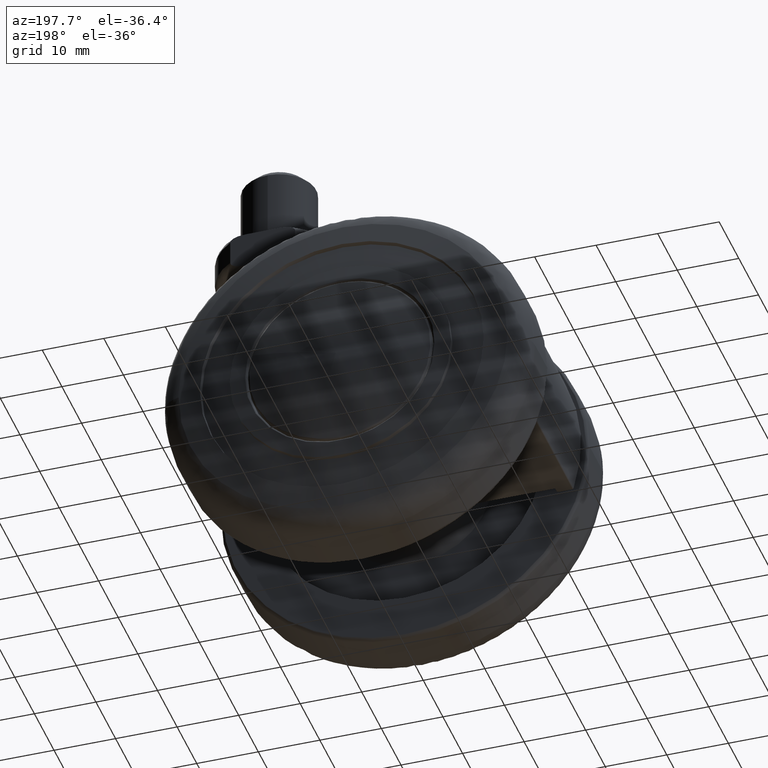
[diagram: clean part render]
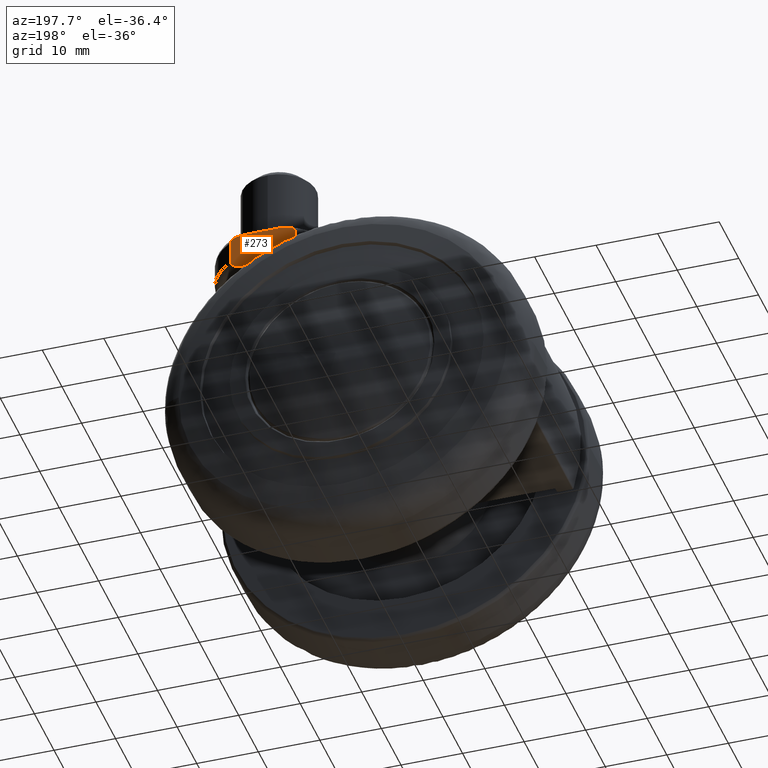
[diagram: same view with one face highlighted and labeled with its STEP entity id]
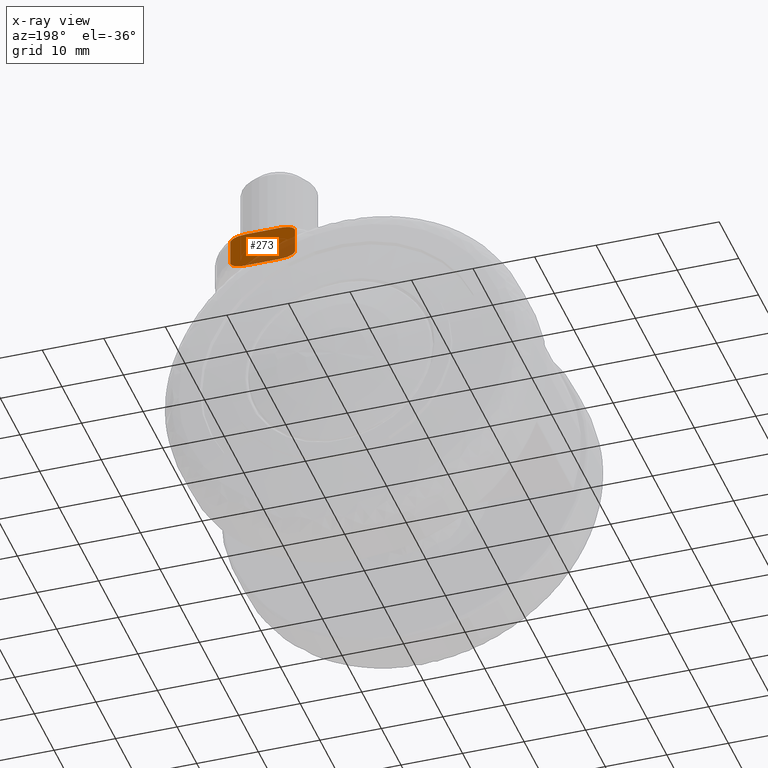
[diagram: x-ray of the same camera — body ghosted, the highlighted face saturated]
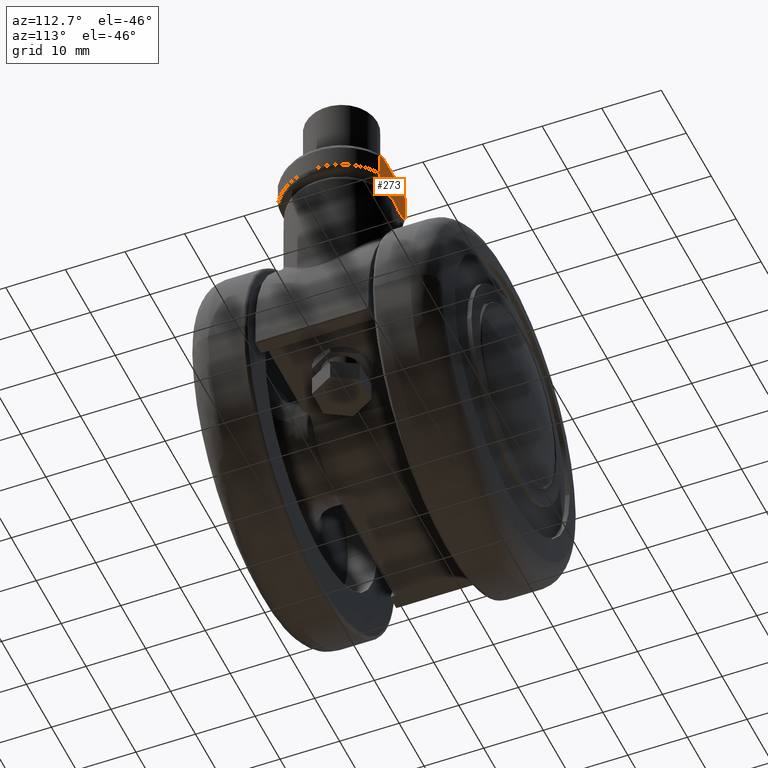
[diagram: same view with one face highlighted and labeled with its STEP entity id]
A machine part, auxiliary view. The second image highlights one B-rep face of the part: STEP entity #273.
The next image is the same camera in x-ray: the body ghosted, the highlighted face saturated — about 28% of this face is hidden behind the body in this view.
A second angle (auxiliary view) of the same face is appended — the face is thin or edge-on in the first view.
In plain terms, the highlighted planar face has unit normal (-0, -1, 0).
Its self-contained STEP definition (entity closure, byte-faithful):
#273=ADVANCED_FACE('',(#1474),#1473,.F.);
#1473=PLANE('',#4197);
#1474=FACE_OUTER_BOUND('',#4198,.T.);
#4194=CARTESIAN_POINT('',(6.00000000000E-01,-6.32139225171E+00,8.50000000000E+00));
#4195=DIRECTION('',(0.00000000000E+00,0.00000000000E+00,-1.00000000000E+00));
#4196=DIRECTION('',(-1.00000000000E+00,0.00000000000E+00,0.00000000000E+00));
#4197=AXIS2_PLACEMENT_3D('',#4194,#4195,#4196);
#4198=EDGE_LOOP('',(#5065,#5066,#5067,#5068,#5069,#5070,#5071,#5072));
#5065=ORIENTED_EDGE('',*,*,#5514,.T.);
#5066=ORIENTED_EDGE('',*,*,#5501,.T.);
#5067=ORIENTED_EDGE('',*,*,#5494,.T.);
#5068=ORIENTED_EDGE('',*,*,#5515,.T.);
#5069=ORIENTED_EDGE('',*,*,#5516,.F.);
#5070=ORIENTED_EDGE('',*,*,#5517,.T.);
#5071=ORIENTED_EDGE('',*,*,#5505,.F.);
#5072=ORIENTED_EDGE('',*,*,#5518,.T.);
#5494=EDGE_CURVE('',#7398,#7399,#7400,.T.);
#5501=EDGE_CURVE('',#7447,#7398,#7448,.T.);
#5505=EDGE_CURVE('',#7468,#7475,#7476,.T.);
#5514=EDGE_CURVE('',#7535,#7447,#7536,.T.);
#5515=EDGE_CURVE('',#7399,#7542,#7543,.T.);
#5516=EDGE_CURVE('',#7549,#7542,#7550,.T.);
#5517=EDGE_CURVE('',#7549,#7475,#7556,.T.);
#5518=EDGE_CURVE('',#7468,#7535,#7562,.T.);
#7398=VERTEX_POINT('',#9472);
#7399=VERTEX_POINT('',#9473);
#7400=LINE('',#9474,#9475);
#7447=VERTEX_POINT('',#9513);
#7448=(BOUNDED_CURVE() B_SPLINE_CURVE(3,(#9514,#9515,#9516,#9517,#9518,#9519,#9520,#9521,#9522,#9523,#9524,#9525,#9526,#9527),.UNSPECIFIED.,.F.,.F.) B_SPLINE_CURVE_WITH_KNOTS((4,2,2,2,2,2,4),(0.00000000000E+00,3.88495916529E-04,7.76991833057E-04,1.16548774959E-03,1.55398366611E-03,2.33097549917E-03,3.10796733223E-03),.UNSPECIFIED.) CURVE() GEOMETRIC_REPRESENTATION_ITEM() RATIONAL_B_SPLINE_CURVE((1.00000000000E+00,1.00000000000E+00,1.00000000000E+00,1.00000000000E+00,1.00000000000E+00,1.00000000000E+00,1.00000000000E+00,1.00000000000E+00,1.00000000000E+00,1.00000000000E+00,1.00000000000E+00,1.00000000000E+00,1.00000000000E+00,1.00000000000E+00)) REPRESENTATION_ITEM('') );
#7468=VERTEX_POINT('',#9537);
#7475=VERTEX_POINT('',#9542);
#7476=LINE('',#9543,#9544);
#7535=VERTEX_POINT('',#9609);
#7536=LINE('',#9610,#9611);
#7542=VERTEX_POINT('',#9613);
#7543=(BOUNDED_CURVE() B_SPLINE_CURVE(3,(#9614,#9615,#9616,#9617,#9618,#9619,#9620,#9621,#9622,#9623,#9624,#9625),.UNSPECIFIED.,.F.,.F.) B_SPLINE_CURVE_WITH_KNOTS((4,2,2,2,2,4),(3.04589761903E-18,7.70109547147E-04,1.54021909429E-03,2.31032864144E-03,2.69538341502E-03,3.08043818859E-03),.UNSPECIFIED.) CURVE() GEOMETRIC_REPRESENTATION_ITEM() RATIONAL_B_SPLINE_CURVE((1.00000000000E+00,1.00000000000E+00,1.00000000000E+00,1.00000000000E+00,1.00000000000E+00,1.00000000000E+00,1.00000000000E+00,1.00000000000E+00,1.00000000000E+00,1.00000000000E+00,1.00000000000E+00,1.00000000000E+00)) REPRESENTATION_ITEM('') );
#7549=VERTEX_POINT('',#9626);
#7550=LINE('',#9627,#9628);
#7556=(BOUNDED_CURVE() B_SPLINE_CURVE(3,(#9630,#9631,#9632,#9633,#9634,#9635,#9636,#9637,#9638,#9639,#9640,#9641,#9642,#9643),.UNSPECIFIED.,.F.,.F.) B_SPLINE_CURVE_WITH_KNOTS((4,2,2,2,2,2,4),(0.00000000000E+00,3.88495916529E-04,7.76991833057E-04,1.16548774959E-03,1.55398366611E-03,2.33097549917E-03,3.10796733223E-03),.UNSPECIFIED.) CURVE() GEOMETRIC_REPRESENTATION_ITEM() RATIONAL_B_SPLINE_CURVE((1.00000000000E+00,1.00000000000E+00,1.00000000000E+00,1.00000000000E+00,1.00000000000E+00,1.00000000000E+00,1.00000000000E+00,1.00000000000E+00,1.00000000000E+00,1.00000000000E+00,1.00000000000E+00,1.00000000000E+00,1.00000000000E+00,1.00000000000E+00)) REPRESENTATION_ITEM('') );
#7562=(BOUNDED_CURVE() B_SPLINE_CURVE(3,(#9644,#9645,#9646,#9647,#9648,#9649,#9650,#9651,#9652,#9653,#9654,#9655),.UNSPECIFIED.,.F.,.F.) B_SPLINE_CURVE_WITH_KNOTS((4,2,2,2,2,4),(8.67361737988E-19,7.70109547147E-04,1.54021909429E-03,2.31032864144E-03,2.69538341502E-03,3.08043818859E-03),.UNSPECIFIED.) CURVE() GEOMETRIC_REPRESENTATION_ITEM() RATIONAL_B_SPLINE_CURVE((1.00000000000E+00,1.00000000000E+00,1.00000000000E+00,1.00000000000E+00,1.00000000000E+00,1.00000000000E+00,1.00000000000E+00,1.00000000000E+00,1.00000000000E+00,1.00000000000E+00,1.00000000000E+00,1.00000000000E+00)) REPRESENTATION_ITEM('') );
#9472=CARTESIAN_POINT('',(0.00000000000E+00,-2.63818119165E+00,8.50000000000E+00));
#9473=CARTESIAN_POINT('',(0.00000000000E+00,2.63818119165E+00,8.50000000000E+00));
#9474=CARTESIAN_POINT('',(0.00000000000E+00,-2.63818119165E+00,8.50000000000E+00));
#9475=VECTOR('',#9476,5.27636238331E+00);
#9476=DIRECTION('',(0.00000000000E+00,1.00000000000E+00,6.73326322324E-16));
#9513=CARTESIAN_POINT('',(-1.10000000000E+00,-5.26782687643E+00,8.50000000000E+00));
#9514=CARTESIAN_POINT('',(-1.10000000000E+00,-5.26782687643E+00,8.50000000000E+00));
#9515=CARTESIAN_POINT('',(-9.68499553201E-01,-5.26782687643E+00,8.50000000000E+00));
#9516=CARTESIAN_POINT('',(-8.42398680044E-01,-5.22161234199E+00,8.50000000000E+00));
#9517=CARTESIAN_POINT('',(-6.26244626236E-01,-5.07454047306E+00,8.50000000000E+00));
#9518=CARTESIAN_POINT('',(-5.37845918692E-01,-4.97791877551E+00,8.50000000000E+00));
#9519=CARTESIAN_POINT('',(-3.88525246211E-01,-4.76470148028E+00,8.50000000000E+00));
#9520=CARTESIAN_POINT('',(-3.29242311810E-01,-4.65037410100E+00,8.50000000000E+00));
#9521=CARTESIAN_POINT('',(-2.29321570996E-01,-4.41236036611E+00,8.50000000000E+00));
#9522=CARTESIAN_POINT('',(-1.88995106134E-01,-4.28820403780E+00,8.50000000000E+00));
#9523=CARTESIAN_POINT('',(-9.07994094855E-02,-3.91544957079E+00,8.50000000000E+00));
#9524=CARTESIAN_POINT('',(-5.34717197284E-02,-3.66275141159E+00,8.50000000000E+00));
#9525=CARTESIAN_POINT('',(-7.75969497104E-03,-3.15303954897E+00,8.50000000000E+00));
#9526=CARTESIAN_POINT('',(-2.82697246146E-16,-2.89554108775E+00,8.50000000000E+00));
#9527=CARTESIAN_POINT('',(0.00000000000E+00,-2.63818119165E+00,8.50000000000E+00));
#9537=CARTESIAN_POINT('',(-6.00000000000E+00,-2.63818119165E+00,8.50000000000E+00));
#9542=CARTESIAN_POINT('',(-6.00000000000E+00,2.63818119165E+00,8.50000000000E+00));
#9543=CARTESIAN_POINT('',(-6.00000000000E+00,-2.63818119165E+00,8.50000000000E+00));
#9544=VECTOR('',#9545,5.27636238331E+00);
#9545=DIRECTION('',(0.00000000000E+00,1.00000000000E+00,0.00000000000E+00));
#9609=CARTESIAN_POINT('',(-4.90000000000E+00,-5.26782687643E+00,8.50000000000E+00));
#9610=CARTESIAN_POINT('',(-4.90000000000E+00,-5.26782687643E+00,8.50000000000E+00));
#9611=VECTOR('',#9612,3.80000000000E+00);
#9612=DIRECTION('',(1.00000000000E+00,0.00000000000E+00,0.00000000000E+00));
#9613=CARTESIAN_POINT('',(-1.10000000000E+00,5.26782687643E+00,8.50000000000E+00));
#9614=CARTESIAN_POINT('',(0.00000000000E+00,2.63818119165E+00,8.50000000000E+00));
#9615=CARTESIAN_POINT('',(-1.90582413132E-18,2.89575272413E+00,8.50000000000E+00));
#9616=CARTESIAN_POINT('',(-7.70887567934E-03,3.15268964969E+00,8.50000000000E+00));
#9617=CARTESIAN_POINT('',(-5.36080344117E-02,3.66405422282E+00,8.50000000000E+00));
#9618=CARTESIAN_POINT('',(-9.16527602916E-02,3.92035952819E+00,8.50000000000E+00));
#9619=CARTESIAN_POINT('',(-2.23730215671E-01,4.41835256918E+00,8.50000000000E+00));
#9620=CARTESIAN_POINT('',(-3.17408247828E-01,4.66373596702E+00,8.50000000000E+00));
#9621=CARTESIAN_POINT('',(-5.37698987677E-01,4.97741395515E+00,8.50000000000E+00));
#9622=CARTESIAN_POINT('',(-6.27225778854E-01,5.07528084069E+00,8.50000000000E+00));
#9623=CARTESIAN_POINT('',(-8.42046734144E-01,5.22129987499E+00,8.50000000000E+00));
#9624=CARTESIAN_POINT('',(-9.68532524119E-01,5.26782687643E+00,8.50000000000E+00));
#9625=CARTESIAN_POINT('',(-1.10000000000E+00,5.26782687643E+00,8.50000000000E+00));
#9626=CARTESIAN_POINT('',(-4.90000000000E+00,5.26782687643E+00,8.50000000000E+00));
#9627=CARTESIAN_POINT('',(-4.90000000000E+00,5.26782687643E+00,8.50000000000E+00));
#9628=VECTOR('',#9629,3.80000000000E+00);
#9629=DIRECTION('',(1.00000000000E+00,0.00000000000E+00,0.00000000000E+00));
#9630=CARTESIAN_POINT('',(-4.90000000000E+00,5.26782687643E+00,8.50000000000E+00));
#9631=CARTESIAN_POINT('',(-5.03150044680E+00,5.26782687643E+00,8.50000000000E+00));
#9632=CARTESIAN_POINT('',(-5.15760131996E+00,5.22161234199E+00,8.50000000000E+00));
#9633=CARTESIAN_POINT('',(-5.37375537376E+00,5.07454047306E+00,8.50000000000E+00));
#9634=CARTESIAN_POINT('',(-5.46215408131E+00,4.97791877551E+00,8.50000000000E+00));
#9635=CARTESIAN_POINT('',(-5.61147475379E+00,4.76470148028E+00,8.50000000000E+00));
#9636=CARTESIAN_POINT('',(-5.67075768819E+00,4.65037410100E+00,8.50000000000E+00));
#9637=CARTESIAN_POINT('',(-5.77067842900E+00,4.41236036611E+00,8.50000000000E+00));
#9638=CARTESIAN_POINT('',(-5.81100489387E+00,4.28820403780E+00,8.50000000000E+00));
#9639=CARTESIAN_POINT('',(-5.90920059051E+00,3.91544957079E+00,8.50000000000E+00));
#9640=CARTESIAN_POINT('',(-5.94652828027E+00,3.66275141159E+00,8.50000000000E+00));
#9641=CARTESIAN_POINT('',(-5.99224030503E+00,3.15303954897E+00,8.50000000000E+00));
#9642=CARTESIAN_POINT('',(-6.00000000000E+00,2.89554108775E+00,8.50000000000E+00));
#9643=CARTESIAN_POINT('',(-6.00000000000E+00,2.63818119165E+00,8.50000000000E+00));
#9644=CARTESIAN_POINT('',(-6.00000000000E+00,-2.63818119165E+00,8.50000000000E+00));
#9645=CARTESIAN_POINT('',(-6.00000000000E+00,-2.89575272413E+00,8.50000000000E+00));
#9646=CARTESIAN_POINT('',(-5.99229112432E+00,-3.15268964969E+00,8.50000000000E+00));
#9647=CARTESIAN_POINT('',(-5.94639196559E+00,-3.66405422282E+00,8.50000000000E+00));
#9648=CARTESIAN_POINT('',(-5.90834723971E+00,-3.92035952819E+00,8.50000000000E+00));
#9649=CARTESIAN_POINT('',(-5.77626978433E+00,-4.41835256918E+00,8.50000000000E+00));
#9650=CARTESIAN_POINT('',(-5.68259175217E+00,-4.66373596702E+00,8.50000000000E+00));
#9651=CARTESIAN_POINT('',(-5.46230101232E+00,-4.97741395515E+00,8.50000000000E+00));
#9652=CARTESIAN_POINT('',(-5.37277422115E+00,-5.07528084069E+00,8.50000000000E+00));
#9653=CARTESIAN_POINT('',(-5.15795326586E+00,-5.22129987499E+00,8.50000000000E+00));
#9654=CARTESIAN_POINT('',(-5.03146747588E+00,-5.26782687643E+00,8.50000000000E+00));
#9655=CARTESIAN_POINT('',(-4.90000000000E+00,-5.26782687643E+00,8.50000000000E+00));